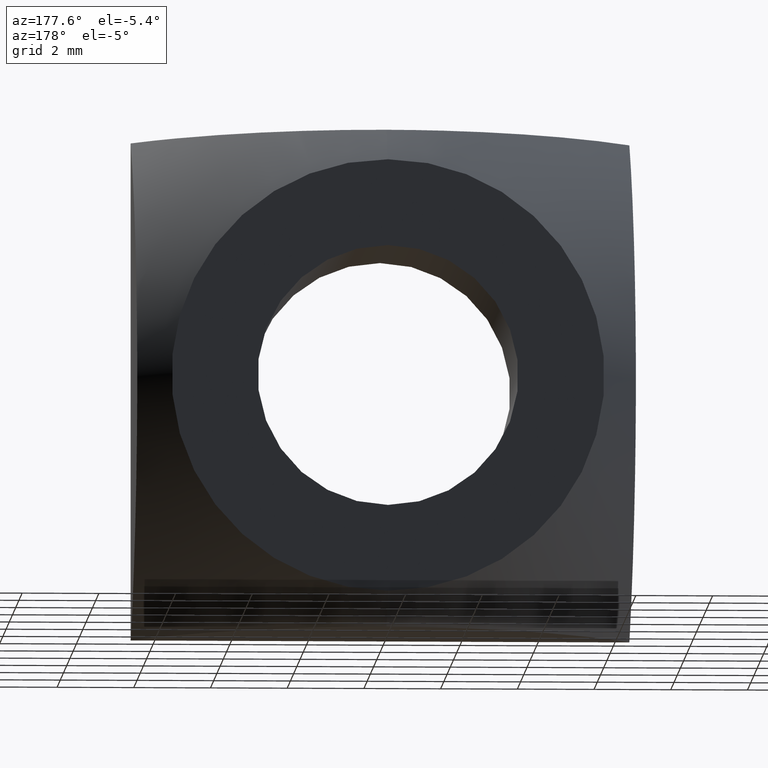
[diagram: clean part render]
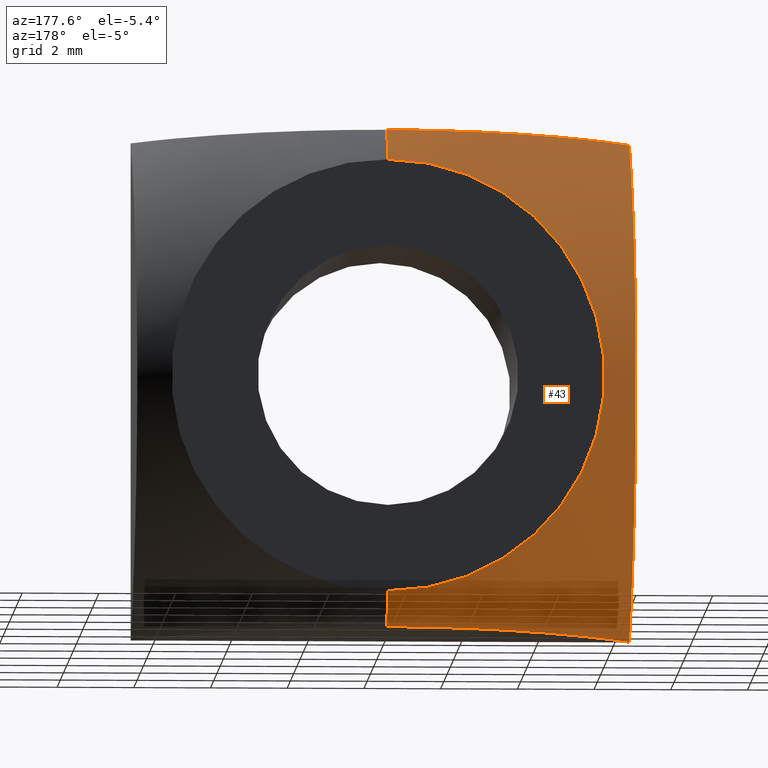
[diagram: same view with one face highlighted and labeled with its STEP entity id]
A machine part, auxiliary view. The second image highlights one B-rep face of the part: STEP entity #43.
In plain terms, the highlighted toroidal blend (fillet) surface has major radius 6.1743 mm and minor (blend) radius 17 mm.
Its self-contained STEP definition (entity closure, byte-faithful):
#8 = EDGE_CURVE ( 'NONE', #238, #248, #72, .T. ) ;
#9 = EDGE_CURVE ( 'NONE', #305, #354, #57, .T. ) ;
#10 = EDGE_CURVE ( 'NONE', #416, #305, #100, .T. ) ;
#16 = EDGE_CURVE ( 'NONE', #226, #248, #53, .T. ) ;
#26 = EDGE_CURVE ( 'NONE', #238, #416, #107, .T. ) ;
#36 = EDGE_CURVE ( 'NONE', #354, #226, #56, .T. ) ;
#43 = ADVANCED_FACE ( 'NONE', ( #225 ), #113, .T. ) ;
#53 = B_SPLINE_CURVE_WITH_KNOTS ( 'NONE', 3,
 ( #213, #294, #422, #173, #230, #264, #398, #126, #220, #202, #153, #393 ),
 .UNSPECIFIED., .F., .F.,
 ( 4, 2, 2, 2, 2, 4 ),
 ( 0.05469827054856388200, 0.05668888045020870100, 0.05867949035185351900, 0.05967479530267592900, 0.06067010025349833800, 0.06266071015514315700 ),
 .UNSPECIFIED. ) ;
#56 = B_SPLINE_CURVE_WITH_KNOTS ( 'NONE', 3,
 ( #222, #347, #162, #292, #324, #285, #147, #252, #419, #321, #415, #118, #119, #388, #242, #405, #266, #360, #363, #179, #209, #449 ),
 .UNSPECIFIED., .F., .F.,
 ( 4, 2, 2, 2, 2, 2, 2, 2, 2, 2, 4 ),
 ( 0.05469827054856406900, 0.05668859883386818300, 0.05867892711917230300, 0.05967409126182435900, 0.06066925540447641600, 0.06265958368978052900, 0.06464991197508464200, 0.06664024026038875600, 0.06763540440304081900, 0.06863056854569286900, 0.07062089683099698200 ),
 .UNSPECIFIED. ) ;
#57 = B_SPLINE_CURVE_WITH_KNOTS ( 'NONE', 3,
 ( #229, #309, #442, #246, #254, #409, #387, #308, #389, #307, #366, #390 ),
 .UNSPECIFIED., .F., .F.,
 ( 4, 2, 2, 2, 2, 4 ),
 ( 0.0000000000000000000, 0.001990046668963425500, 0.003980093337926851100, 0.004975116672408563600, 0.005970140006890277100, 0.007960186675853698700 ),
 .UNSPECIFIED. ) ;
#67 = AXIS2_PLACEMENT_3D ( 'NONE', #198, #178, #276 ) ;
#72 = CIRCLE ( 'NONE', #106, 17.00000000000000000 ) ;
#84 = AXIS2_PLACEMENT_3D ( 'NONE', #200, #418, #358 ) ;
#89 = AXIS2_PLACEMENT_3D ( 'NONE', #188, #325, #277 ) ;
#100 = CIRCLE ( 'NONE', #67, 17.00000000000000000 ) ;
#106 = AXIS2_PLACEMENT_3D ( 'NONE', #243, #404, #234 ) ;
#107 = CIRCLE ( 'NONE', #89, 5.644004798131256000 ) ;
#113 = TOROIDAL_SURFACE ( 'NONE', #84, -6.174269187523332600, 17.00000000000000000 ) ;
#118 = CARTESIAN_POINT ( 'NONE',  ( -6.499999999999999100, 4.109867876356189800, 0.6728596580752527200 ) ) ;
#119 = CARTESIAN_POINT ( 'NONE',  ( -6.500000000000000900, 3.993916635667155400, 1.325323139714466000 ) ) ;
#126 = CARTESIAN_POINT ( 'NONE',  ( -2.579949745945144800, 3.540641047558074300, 6.500000000000001800 ) ) ;
#147 = CARTESIAN_POINT ( 'NONE',  ( -6.500000000000000000, 3.239278010035576500, -3.174652484528132800 ) ) ;
#148 = CARTESIAN_POINT ( 'NONE',  ( 0.0000000000000000000, 4.109735237956652300, -6.499999999999999100 ) ) ;
#153 = CARTESIAN_POINT ( 'NONE',  ( -0.6728908548416628900, 4.109735237956652300, 6.500000000000000900 ) ) ;
#162 = CARTESIAN_POINT ( 'NONE',  ( -6.500000000000000000, 1.119725732539849500, -5.718510072696506800 ) ) ;
#173 = CARTESIAN_POINT ( 'NONE',  ( -4.797843221465107900, 2.074270503709186200, 6.500000000000000000 ) ) ;
#177 = CARTESIAN_POINT ( 'NONE',  ( 9.094269545930501500E-016, 4.999999999999999100, 5.644004798131256000 ) ) ;
#178 = DIRECTION ( 'NONE',  ( -1.000000000000000000, 0.0000000000000000000, 0.0000000000000000000 ) ) ;
#179 = CARTESIAN_POINT ( 'NONE',  ( -6.500000000000002700, 1.123578473997164400, 5.715031706449941900 ) ) ;
#183 = ORIENTED_EDGE ( 'NONE', *, *, #16, .T. ) ;
#188 = CARTESIAN_POINT ( 'NONE',  ( 0.0000000000000000000, 4.999999999999999100, 0.0000000000000000000 ) ) ;
#190 = CARTESIAN_POINT ( 'NONE',  ( -6.499999999999997300, 0.05089004898358535900, -6.499999999999999100 ) ) ;
#198 = CARTESIAN_POINT ( 'NONE',  ( 0.0000000000000000000, -7.220000000000002400, 6.174269187523332600 ) ) ;
#199 = CARTESIAN_POINT ( 'NONE',  ( -6.500000000000093300, 0.05089004898344541600, 6.500000000000000900 ) ) ;
#200 = CARTESIAN_POINT ( 'NONE',  ( 0.0000000000000000000, -7.220000000000002400, 0.0000000000000000000 ) ) ;
#202 = CARTESIAN_POINT ( 'NONE',  ( -1.324089535981870500, 3.993502740051847200, 6.500000000000001800 ) ) ;
#209 = CARTESIAN_POINT ( 'NONE',  ( -6.500000000000002700, 0.6064152342343736000, 6.128270591372427100 ) ) ;
#213 = CARTESIAN_POINT ( 'NONE',  ( -6.500000000000093300, 0.05089004898344541600, 6.500000000000000900 ) ) ;
#220 = CARTESIAN_POINT ( 'NONE',  ( -2.268669397716684100, 3.673102568464421000, 6.500000000000000000 ) ) ;
#221 = ORIENTED_EDGE ( 'NONE', *, *, #10, .T. ) ;
#222 = CARTESIAN_POINT ( 'NONE',  ( -6.499999999999997300, 0.05089004898358535900, -6.499999999999999100 ) ) ;
#224 = CARTESIAN_POINT ( 'NONE',  ( 0.0000000000000000000, 4.999999999999999100, -5.644004798131256000 ) ) ;
#225 = FACE_OUTER_BOUND ( 'NONE', #293, .T. ) ;
#226 = VERTEX_POINT ( 'NONE', #199 ) ;
#229 = CARTESIAN_POINT ( 'NONE',  ( 0.0000000000000000000, 4.109735237956652300, -6.499999999999999100 ) ) ;
#230 = CARTESIAN_POINT ( 'NONE',  ( -4.284615633495739900, 2.514295792640039600, 6.500000000000000000 ) ) ;
#234 = DIRECTION ( 'NONE',  ( -1.224646799147353200E-016, 0.0000000000000000000, -1.000000000000000000 ) ) ;
#238 = VERTEX_POINT ( 'NONE', #177 ) ;
#242 = CARTESIAN_POINT ( 'NONE',  ( -6.500000000000000000, 3.255705233841415000, 3.184796144167208400 ) ) ;
#243 = CARTESIAN_POINT ( 'NONE',  ( -7.561298997574578500E-016, -7.220000000000002400, -6.174269187523332600 ) ) ;
#246 = CARTESIAN_POINT ( 'NONE',  ( -2.597829809248589000, 3.560517489800219900, -6.499999999999997300 ) ) ;
#248 = VERTEX_POINT ( 'NONE', #414 ) ;
#252 = CARTESIAN_POINT ( 'NONE',  ( -6.500000000000000900, 3.540326829205480600, -2.580638880078135200 ) ) ;
#254 = CARTESIAN_POINT ( 'NONE',  ( -3.185363310006274200, 3.255375731933094000, -6.500000000000000000 ) ) ;
#257 = ORIENTED_EDGE ( 'NONE', *, *, #9, .T. ) ;
#264 = CARTESIAN_POINT ( 'NONE',  ( -3.459394421651953900, 3.070451726834651800, 6.500000000000000900 ) ) ;
#266 = CARTESIAN_POINT ( 'NONE',  ( -6.500000000000000000, 2.493975134977553400, 4.279363623376193400 ) ) ;
#276 = DIRECTION ( 'NONE',  ( 0.0000000000000000000, 0.0000000000000000000, 1.000000000000000000 ) ) ;
#277 = DIRECTION ( 'NONE',  ( 0.0000000000000000000, 0.0000000000000000000, -1.000000000000000000 ) ) ;
#285 = CARTESIAN_POINT ( 'NONE',  ( -6.500000000000000000, 3.070129253417075400, -3.459911975005362600 ) ) ;
#292 = CARTESIAN_POINT ( 'NONE',  ( -6.500000000000000000, 2.074011848386487800, -4.798117493915410300 ) ) ;
#293 = EDGE_LOOP ( 'NONE', ( #377, #370, #221, #257, #375, #183 ) ) ;
#294 = CARTESIAN_POINT ( 'NONE',  ( -6.130557881894620000, 0.6029970287828481100, 6.500000000000000000 ) ) ;
#305 = VERTEX_POINT ( 'NONE', #148 ) ;
#307 = CARTESIAN_POINT ( 'NONE',  ( -5.715148467929137300, 1.123431959365110500, -6.500000000000000000 ) ) ;
#308 = CARTESIAN_POINT ( 'NONE',  ( -4.786672189913854700, 2.063239728859812800, -6.499999999999998200 ) ) ;
#309 = CARTESIAN_POINT ( 'NONE',  ( -0.6727004638865354800, 4.109735237956653200, -6.500000000000001800 ) ) ;
#321 = CARTESIAN_POINT ( 'NONE',  ( -6.500000000000000900, 3.993284070446364800, -1.324997778549733300 ) ) ;
#324 = CARTESIAN_POINT ( 'NONE',  ( -6.500000000000000000, 2.513996523866434400, -4.284981449289193600 ) ) ;
#325 = DIRECTION ( 'NONE',  ( 0.0000000000000000000, -1.000000000000000000, 0.0000000000000000000 ) ) ;
#347 = CARTESIAN_POINT ( 'NONE',  ( -6.500000000000001800, 0.6029189208889170800, -6.130610147754007100 ) ) ;
#354 = VERTEX_POINT ( 'NONE', #190 ) ;
#358 = DIRECTION ( 'NONE',  ( 0.0000000000000000000, 0.0000000000000000000, -1.000000000000000000 ) ) ;
#360 = CARTESIAN_POINT ( 'NONE',  ( -6.500000000000000900, 2.063493455043966300, 4.786396139126116700 ) ) ;
#363 = CARTESIAN_POINT ( 'NONE',  ( -6.500000000000001800, 1.836440676869264900, 5.027131309837757900 ) ) ;
#366 = CARTESIAN_POINT ( 'NONE',  ( -6.128323188261311400, 0.6063366316386016300, -6.500000000000000900 ) ) ;
#370 = ORIENTED_EDGE ( 'NONE', *, *, #26, .T. ) ;
#375 = ORIENTED_EDGE ( 'NONE', *, *, #36, .T. ) ;
#377 = ORIENTED_EDGE ( 'NONE', *, *, #8, .F. ) ;
#387 = CARTESIAN_POINT ( 'NONE',  ( -4.279733229958274000, 2.493680659320166800, -6.499999999999999100 ) ) ;
#388 = CARTESIAN_POINT ( 'NONE',  ( -6.499999999999999100, 3.560839629399119100, 2.597151962111146500 ) ) ;
#389 = CARTESIAN_POINT ( 'NONE',  ( -5.027364923004357800, 1.836211336588508900, -6.500000000000000000 ) ) ;
#390 = CARTESIAN_POINT ( 'NONE',  ( -6.499999999999997300, 0.05089004898358535900, -6.499999999999999100 ) ) ;
#393 = CARTESIAN_POINT ( 'NONE',  ( 7.960204194457799400E-016, 4.109735237956652300, 6.500000000000000900 ) ) ;
#398 = CARTESIAN_POINT ( 'NONE',  ( -3.174080856937323800, 3.239602677233719000, 6.500000000000000900 ) ) ;
#404 = DIRECTION ( 'NONE',  ( 1.000000000000000000, 0.0000000000000000000, -1.224646799147353200E-016 ) ) ;
#405 = CARTESIAN_POINT ( 'NONE',  ( -6.499999999999998200, 2.698058606819188300, 4.011808767700959100 ) ) ;
#409 = CARTESIAN_POINT ( 'NONE',  ( -4.012227267387062000, 2.697749916528825200, -6.500000000000000000 ) ) ;
#414 = CARTESIAN_POINT ( 'NONE',  ( 7.960204194457799400E-016, 4.109735237956652300, 6.500000000000000900 ) ) ;
#415 = CARTESIAN_POINT ( 'NONE',  ( -6.500000000000000900, 4.109602374153216600, -0.6751484999687205100 ) ) ;
#416 = VERTEX_POINT ( 'NONE', #224 ) ;
#418 = DIRECTION ( 'NONE',  ( -0.0000000000000000000, -1.000000000000000000, -0.0000000000000000000 ) ) ;
#419 = CARTESIAN_POINT ( 'NONE',  ( -6.499999999999999100, 3.672803873449383100, -2.269417947575904600 ) ) ;
#422 = CARTESIAN_POINT ( 'NONE',  ( -5.718393653599532600, 1.119872145102291300, 6.500000000000001800 ) ) ;
#442 = CARTESIAN_POINT ( 'NONE',  ( -1.326264826254120100, 3.993687183244005300, -6.499999999999999100 ) ) ;
#449 = CARTESIAN_POINT ( 'NONE',  ( -6.500000000000093300, 0.05089004898344541600, 6.500000000000000900 ) ) ;